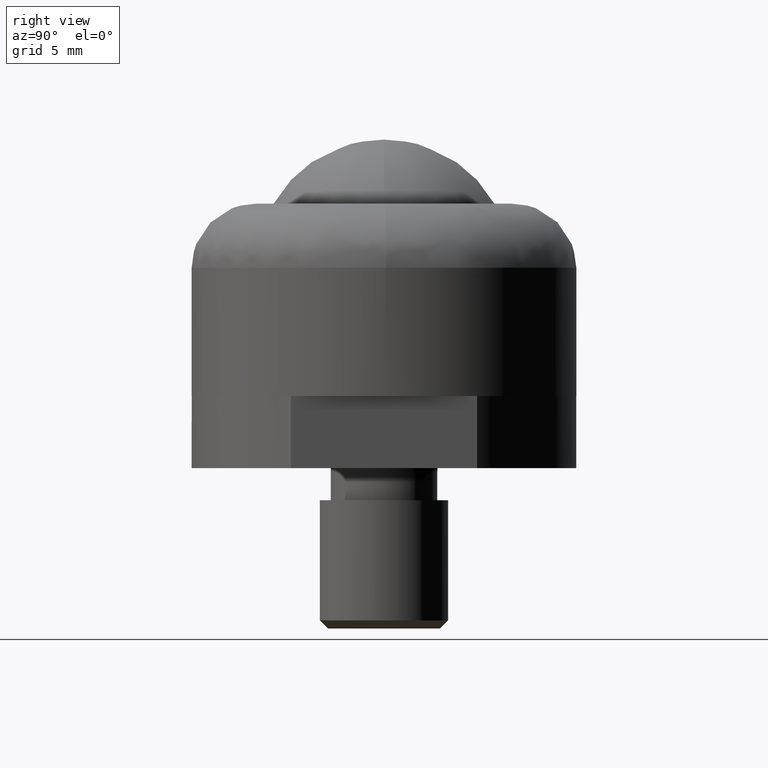
[diagram: clean part render]
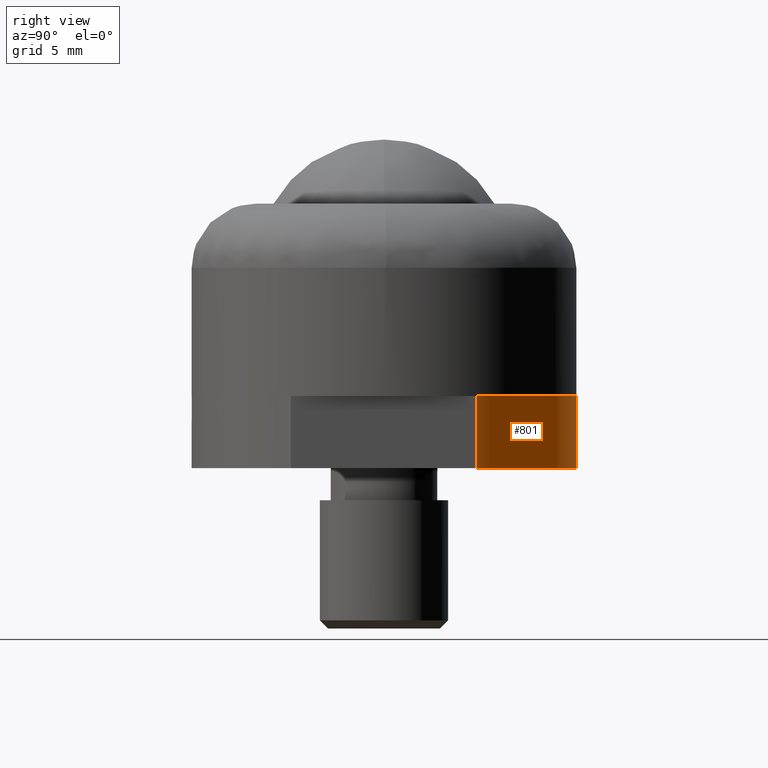
[diagram: same view with one face highlighted and labeled with its STEP entity id]
A machine part, right view. The second image highlights one B-rep face of the part: STEP entity #801.
In plain terms, the highlighted face is a freeform B-spline surface patch.
Its self-contained STEP definition (entity closure, byte-faithful):
#633=CARTESIAN_POINT('',(-10.500000000000000,5.809475019311289,0.0));
#634=VERTEX_POINT('',#633);
#663=CARTESIAN_POINT('',(10.500000000000000,5.809475019311130,0.0));
#664=VERTEX_POINT('',#663);
#670=CARTESIAN_POINT('',(-10.500000000000000,5.809475019311289,0.0));
#671=CARTESIAN_POINT('',(-10.242117215208980,6.275605234430886,0.0));
#672=CARTESIAN_POINT('',(-9.646071837822303,7.201508535675059,0.0));
#673=CARTESIAN_POINT('',(-8.602601986492628,8.417268605614488,0.0));
#674=CARTESIAN_POINT('',(-7.407578688624915,9.483110922433397,0.0));
#675=CARTESIAN_POINT('',(-6.167664185217088,10.330108874613479,0.0));
#676=CARTESIAN_POINT('',(-4.624964387507213,11.122466770349170,0.0));
#677=CARTESIAN_POINT('',(-3.040558895919186,11.655678351125060,0.0));
#678=CARTESIAN_POINT('',(-1.398375902166013,11.945599694322160,0.0));
#679=CARTESIAN_POINT('',(0.299658659024712,12.044753546176480,0.0));
#680=CARTESIAN_POINT('',(2.197436651505532,11.862530877353240,0.0));
#681=CARTESIAN_POINT('',(4.094743784801326,11.327813514176000,0.0));
#682=CARTESIAN_POINT('',(5.615083316376209,10.640587532630001,0.0));
#683=CARTESIAN_POINT('',(6.980404733481807,9.804707793567284,0.0));
#684=CARTESIAN_POINT('',(8.198107842891686,8.814878530308752,0.0));
#685=CARTESIAN_POINT('',(9.449977051081426,7.473500826126894,0.0));
#686=CARTESIAN_POINT('',(10.145459953710860,6.450446533234692,0.0));
#687=CARTESIAN_POINT('',(10.500000000000000,5.809475019311130,0.0));
#688=B_SPLINE_CURVE_WITH_KNOTS('',3,(#670,#671,#672,#673,#674,#675,#676,#677,#678,#679,#680,#681,#682,#683,#684,#685,#686,#687),.UNSPECIFIED.,.F.,.U.,(4,1,1,1,1,1,1,1,1,1,1,1,1,1,1,4),(0.000000011116303,1.598135703575885,3.296192555861630,4.794471293475851,6.392633867620987,7.791026332534820,9.988493996204911,11.386889570018811,12.785267019240671,15.082609349465290,17.080314180818121,18.678473609035930,20.076866869524899,21.874800075603940,23.373075697970741,25.570533412326359),.UNSPECIFIED.);
#689=EDGE_CURVE('',#634,#664,#688,.T.);
#699=CARTESIAN_POINT('',(-10.500000000000000,5.809475019311289,-4.499999999999949));
#700=VERTEX_POINT('',#699);
#708=CARTESIAN_POINT('',(10.500000000000000,5.809475019311130,-4.499999999999949));
#709=VERTEX_POINT('',#708);
#710=CARTESIAN_POINT('',(-10.500000000000000,5.809475019311289,-4.499999999999949));
#711=CARTESIAN_POINT('',(-10.161563631392649,6.421299190034111,-4.499999999999938));
#712=CARTESIAN_POINT('',(-9.470634936564041,7.446886776661034,-4.499999999999981));
#713=CARTESIAN_POINT('',(-8.292006311828548,8.720334388481659,-4.499999999999911));
#714=CARTESIAN_POINT('',(-7.139029377531418,9.681709138700764,-4.499999999999985));
#715=CARTESIAN_POINT('',(-5.823015827243684,10.533323157230610,-4.499999999999926));
#716=CARTESIAN_POINT('',(-4.373817234793475,11.217641647163139,-4.499999999999982));
#717=CARTESIAN_POINT('',(-2.843477146380789,11.690421801986419,-4.499999999999925));
#718=CARTESIAN_POINT('',(-1.529748062289728,11.922418112520900,-4.499999999999969));
#719=CARTESIAN_POINT('',(-0.266999686769659,12.017186505373971,-4.499999999999945));
#720=CARTESIAN_POINT('',(0.966610006564828,11.986386109214889,-4.499999999999941));
#721=CARTESIAN_POINT('',(2.254759852485893,11.808341405150991,-4.499999999999970));
#722=CARTESIAN_POINT('',(3.517187281385928,11.497550977230240,-4.499999999999932));
#723=CARTESIAN_POINT('',(4.707883186713018,11.063458592354429,-4.499999999999972));
#724=CARTESIAN_POINT('',(5.963845022407126,10.444632315063840,-4.500000000000037));
#725=CARTESIAN_POINT('',(7.140473307110120,9.683238399429168,-4.499999999999868));
#726=CARTESIAN_POINT('',(8.289138323785000,8.717304988299311,-4.500000000000066));
#727=CARTESIAN_POINT('',(9.449984075608574,7.473508493710113,-4.499999999999640));
#728=CARTESIAN_POINT('',(10.145458056323321,6.450444676242321,-4.500000000000362));
#729=CARTESIAN_POINT('',(10.500000000000000,5.809475019311130,-4.499999999999949));
#730=B_SPLINE_CURVE_WITH_KNOTS('',3,(#710,#711,#712,#713,#714,#715,#716,#717,#718,#719,#720,#721,#722,#723,#724,#725,#726,#727,#728,#729),.UNSPECIFIED.,.F.,.U.,(4,1,1,1,1,1,1,1,1,1,1,1,1,1,1,1,1,4),(0.000000011116303,2.097566297518672,3.695729392961187,5.194014781943931,6.592404584681599,8.390341121390950,9.988493996204911,11.386889570018811,12.385735273569139,13.784110993615270,15.082609349465290,16.281224665462041,17.679622594680161,18.878244475593039,20.476409505159360,21.874800075603940,23.373075697970741,25.570533412326359),.UNSPECIFIED.);
#731=EDGE_CURVE('',#700,#709,#730,.T.);
#773=CARTESIAN_POINT('',(-10.648476239519679,5.532626300084326,-4.612499999999948));
#774=CARTESIAN_POINT('',(-10.648476239519679,5.532626300084326,0.115312499999999));
#775=CARTESIAN_POINT('',(0.448255390202644,26.890165502329655,-4.612499999999947));
#776=CARTESIAN_POINT('',(0.448255390202644,26.890165502329655,0.115312499999999));
#777=CARTESIAN_POINT('',(10.826964801689490,5.174633627898389,-4.612499999999948));
#778=CARTESIAN_POINT('',(10.826964801689490,5.174633627898389,0.115312499999999));
#786=(BOUNDED_SURFACE()B_SPLINE_SURFACE(1,2,((#773,#775,#777),(#774,#776,#778)),.UNSPECIFIED.,.F.,.F.,.U.)B_SPLINE_SURFACE_WITH_KNOTS((2,2),(3,3),(0.0,4.727812499999947),(0.0,29.703301282502711),.UNSPECIFIED.)GEOMETRIC_REPRESENTATION_ITEM()RATIONAL_B_SPLINE_SURFACE(((1.0,0.446197813109809,1.0),(1.0,0.446197813109809,1.0)))REPRESENTATION_ITEM('')SURFACE());
#787=ORIENTED_EDGE('',*,*,#689,.T.);
#788=CARTESIAN_POINT('',(10.500000000000000,5.809475019311130,-4.499999999999949));
#789=CARTESIAN_POINT('',(10.500000000000000,5.809475019311130,0.0));
#790=QUASI_UNIFORM_CURVE('',1,(#788,#789),.UNSPECIFIED.,.F.,.U.);
#791=EDGE_CURVE('',#709,#664,#790,.T.);
#792=ORIENTED_EDGE('',*,*,#791,.F.);
#793=ORIENTED_EDGE('',*,*,#731,.F.);
#794=CARTESIAN_POINT('',(-10.500000000000000,5.809475019311289,-4.499999999999949));
#795=CARTESIAN_POINT('',(-10.500000000000000,5.809475019311289,0.0));
#796=QUASI_UNIFORM_CURVE('',1,(#794,#795),.UNSPECIFIED.,.F.,.U.);
#797=EDGE_CURVE('',#700,#634,#796,.T.);
#798=ORIENTED_EDGE('',*,*,#797,.T.);
#799=EDGE_LOOP('',(#787,#792,#793,#798));
#800=FACE_OUTER_BOUND('',#799,.T.);
#801=ADVANCED_FACE('',(#800),#786,.T.);